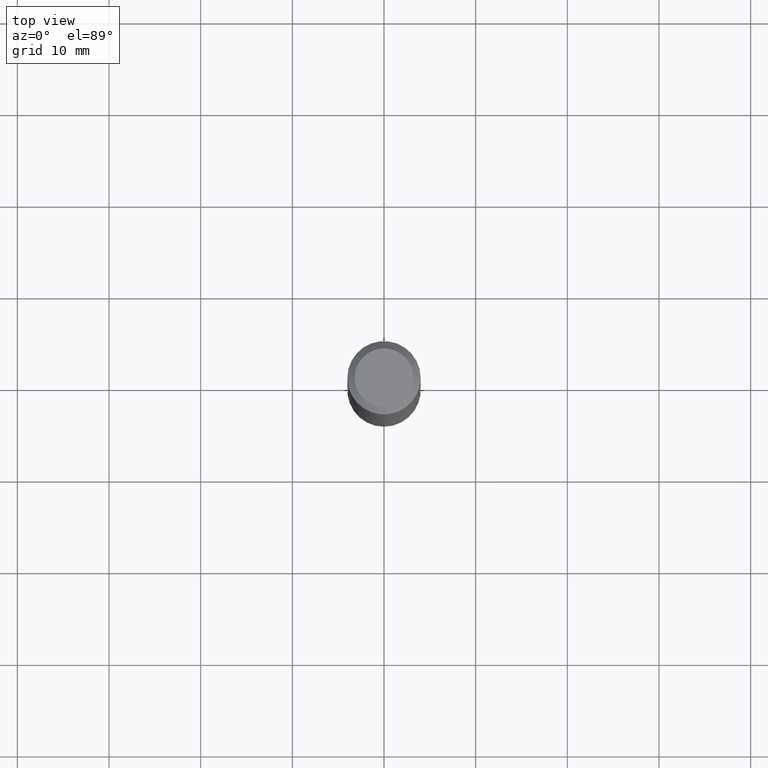
[diagram: clean part render]
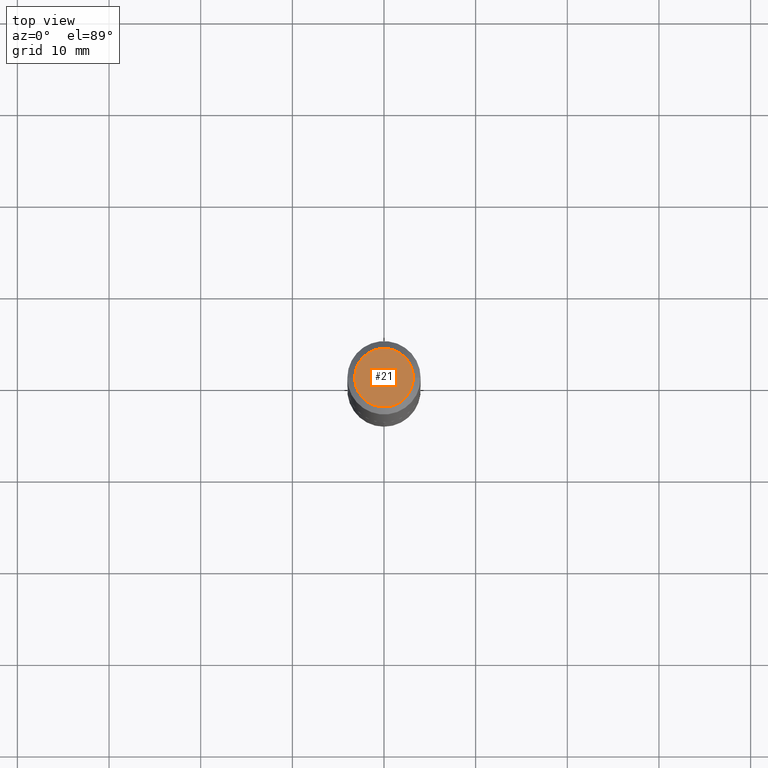
[diagram: same view with one face highlighted and labeled with its STEP entity id]
A machine part, top view. The second image highlights one B-rep face of the part: STEP entity #21.
In plain terms, the highlighted planar face has unit normal (0, -0, -1).
Its self-contained STEP definition (entity closure, byte-faithful):
#14 = CIRCLE ( 'NONE', #108, 0.1262499999999999734 ) ;
#21 = ADVANCED_FACE ( 'NONE', ( #232 ), #383, .F. ) ;
#68 = DIRECTION ( 'NONE',  ( 1.000000000000000000, -6.982962677686267499E-15, 4.876009584780190244E-29 ) ) ;
#69 = DIRECTION ( 'NONE',  ( -2.445468806185136597E-29, 3.491481338843145583E-15, 1.000000000000000000 ) ) ;
#71 = EDGE_CURVE ( 'NONE', #160, #107, #14, .T. ) ;
#73 = AXIS2_PLACEMENT_3D ( 'NONE', #172, #86, #296 ) ;
#86 = DIRECTION ( 'NONE',  ( 2.438088387897960049E-29, -3.491481338843145188E-15, -1.000000000000000000 ) ) ;
#88 = DIRECTION ( 'NONE',  ( 1.000000000000000000, -6.982962677686267499E-15, 4.876009584780190244E-29 ) ) ;
#107 = VERTEX_POINT ( 'NONE', #358 ) ;
#108 = AXIS2_PLACEMENT_3D ( 'NONE', #174, #357, #88 ) ;
#122 = CIRCLE ( 'NONE', #329, 0.1262499999999999734 ) ;
#139 = ORIENTED_EDGE ( 'NONE', *, *, #71, .T. ) ;
#142 = CARTESIAN_POINT ( 'NONE',  ( 0.1262499999999999734, -1.027887549353260543E-15, 4.825108388647252249E-18 ) ) ;
#160 = VERTEX_POINT ( 'NONE', #142 ) ;
#166 = ORIENTED_EDGE ( 'NONE', *, *, #189, .T. ) ;
#172 = CARTESIAN_POINT ( 'NONE',  ( -5.899826025441377755E-47, 8.423387948417044672E-33, 2.412554194320287718E-18 ) ) ;
#174 = CARTESIAN_POINT ( 'NONE',  ( -1.179965205088275551E-46, 1.684677589683408934E-32, 4.825108388640575435E-18 ) ) ;
#189 = EDGE_CURVE ( 'NONE', #107, #160, #122, .T. ) ;
#197 = EDGE_LOOP ( 'NONE', ( #166, #139 ) ) ;
#232 = FACE_OUTER_BOUND ( 'NONE', #197, .T. ) ;
#282 = CARTESIAN_POINT ( 'NONE',  ( -1.179965205088275551E-46, 1.684677589683408934E-32, 4.825108388640575435E-18 ) ) ;
#296 = DIRECTION ( 'NONE',  ( -1.000000000000000000, 6.982962677686265922E-15, -4.876176775795935793E-29 ) ) ;
#329 = AXIS2_PLACEMENT_3D ( 'NONE', #282, #69, #68 ) ;
#357 = DIRECTION ( 'NONE',  ( -2.445468806185136597E-29, 3.491481338843145583E-15, 1.000000000000000000 ) ) ;
#358 = CARTESIAN_POINT ( 'NONE',  ( -0.1262499999999999734, 9.361534339773144209E-16, 4.825108388634219866E-18 ) ) ;
#383 = PLANE ( 'NONE',  #73 ) ;